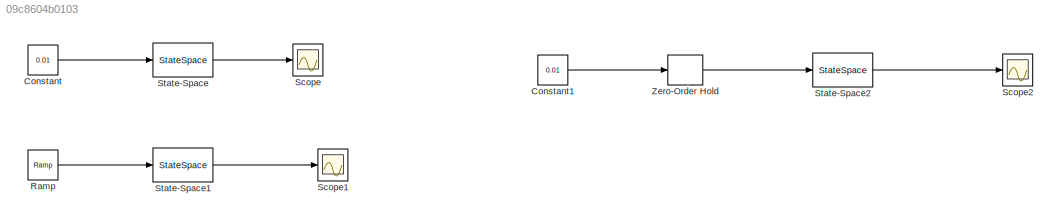
MODEL slx_09c8604b0103
KIND model
CONFIG AbsTol = auto
CONFIG EnableMultiTasking = off
CONFIG FixedStep = .02
CONFIG MaxStep = auto
CONFIG MinStep = auto
CONFIG RelTol = 1e-3
CONFIG SampleTimeConstraint = Unconstrained
CONFIG Solver = FixedStepAuto
CONFIG SolverName = FixedStepAuto
CONFIG StartTime = 0.0
CONFIG StopTime = 1
BLOCK [Constant] Constant
  AttributesFormatString = Simulation Model \nInput-Constant
  Description = Simulation Model Input
  SampleTime = 1
  Value = 0.01
BLOCK [Constant] Constant1
  AttributesFormatString = Simulation Model \nInput-Constant
  Description = Simulation Model Input
  SampleTime = 1
  Value = 0.01
BLOCK [Reference] Ramp  REF=simulink/Sources/Ramp
  AttributesFormatString = Simulation Model \nInput-Linear
  Description = Simulation Model \nInput-Linear variable
  Ports = [0, 1]
  SourceBlock = simulink/Sources/Ramp
  SourceType = Ramp
BLOCK [Scope] Scope
  AttributesFormatString = Output \nconstant Input
  Description = Output for constant Input
  NumInputPorts = 1
  Ports = [1]
  ScopeSpecificationString = Simulink.scopes.TimeScopeBlockCfg('CurrentConfiguration', extmgr.ConfigurationSet(extmgr.Configuration('Core','General UI',true),extmgr.Configuration('Core','Source UI',true),extmgr.Configuration('Sources','WiredSimulink',true),extmgr.Configuration('Visuals','Time Domain',true,'SerializedDisplays',{struct('MinYLimReal','-49.33884','MaxYLimReal','137.09909','YLabelReal','','MinYLimMag','0.00000','M...<+1386ch>
BLOCK [Scope] Scope1
  AttributesFormatString = Output\n Linear Input
  ClipboardFcn = Output\nLinear Input
  Description = Output for Linear Input
  NumInputPorts = 1
  Ports = [1]
  ScopeSpecificationString = Simulink.scopes.TimeScopeBlockCfg('CurrentConfiguration', extmgr.ConfigurationSet(extmgr.Configuration('Core','General UI',true),extmgr.Configuration('Core','Source UI',true),extmgr.Configuration('Sources','WiredSimulink',true,'DataLoggingVariableName','ScopeData1'),extmgr.Configuration('Visuals','Time Domain',true,'SerializedDisplays',{struct('MinYLimReal','-0.45704','MaxYLimReal','1.27095','YLab...<+1417ch>
BLOCK [Scope] Scope2
  AttributesFormatString = Output ZOH \nconstant Input
  Description = Output for constant Input
  NumInputPorts = 1
  Ports = [1]
  ScopeSpecificationString = Simulink.scopes.TimeScopeBlockCfg('CurrentConfiguration', extmgr.ConfigurationSet(extmgr.Configuration('Core','General UI',true),extmgr.Configuration('Core','Source UI',true),extmgr.Configuration('Sources','WiredSimulink',true,'DataLoggingVariableName','ScopeData2'),extmgr.Configuration('Visuals','Time Domain',true,'SerializedDisplays',{struct('MinYLimReal','-49.33884','MaxYLimReal','137.09909','Y...<+1425ch>
BLOCK [StateSpace] State-Space
  A = [ 0, 1.0000, 0, 0; 0, -0.6698, -477.3945, 0; 0, 0, 0, 1.0000;\n0, 0.1477,  122.6790, 0]
  AttributesFormatString = State space representation of Ballbot\nConstant Input
  B = [0;\n69.7518;\n0;\n-15.2579]
  C = [1, 0, 0, 0; 0, 0, 1, 0]
  D = [0; 0]
  Description = State space representation of Ballbot\nConstant Input
  Ports = [1, 1]
  Tag = Ballbot
  X0 = 0
BLOCK [StateSpace] State-Space1
  A = [ 0, 1.0000, 0, 0; 0, -0.6698, -477.3945, 0; 0, 0, 0, 1.0000;\n0, 0.1477,  122.6790, 0]
  AttributesFormatString = State space representation of Ballbot\nLinear Input
  B = [0;\n69.7518;\n0;\n-15.2579]
  C = [1, 0, 0, 0; 0, 0, 1, 0]
  D = [0; 0]
  Description = State space representation of Ballbot\nLinear Input
  Ports = [1, 1]
  Tag = Ballbot
  X0 = 0
BLOCK [StateSpace] State-Space2
  A = [ 0, 1.0000, 0, 0; 0, -0.6698, -477.3945, 0; 0, 0, 0, 1.0000;\n0, 0.1477,  122.6790, 0]
  AttributesFormatString = State space representation of Ballbot\nLinear Input
  B = [0;\n69.7518;\n0;\n-15.2579]
  C = [1, 0, 0, 0; 0, 0, 1, 0]
  D = [0; 0]
  Description = State space representation of Ballbot\nLinear Input
  Ports = [1, 1]
  Tag = Ballbot
  X0 = 0
BLOCK [ZeroOrderHold] Zero-Order Hold
  SampleTime = .005
LINE Constant1:1 -> Zero-Order Hold:1
LINE Constant:1 -> State-Space:1
LINE Ramp:1 -> State-Space1:1
LINE State-Space1:1 -> Scope1:1
LINE State-Space2:1 -> Scope2:1
LINE State-Space:1 -> Scope:1
LINE Zero-Order Hold:1 -> State-Space2:1
